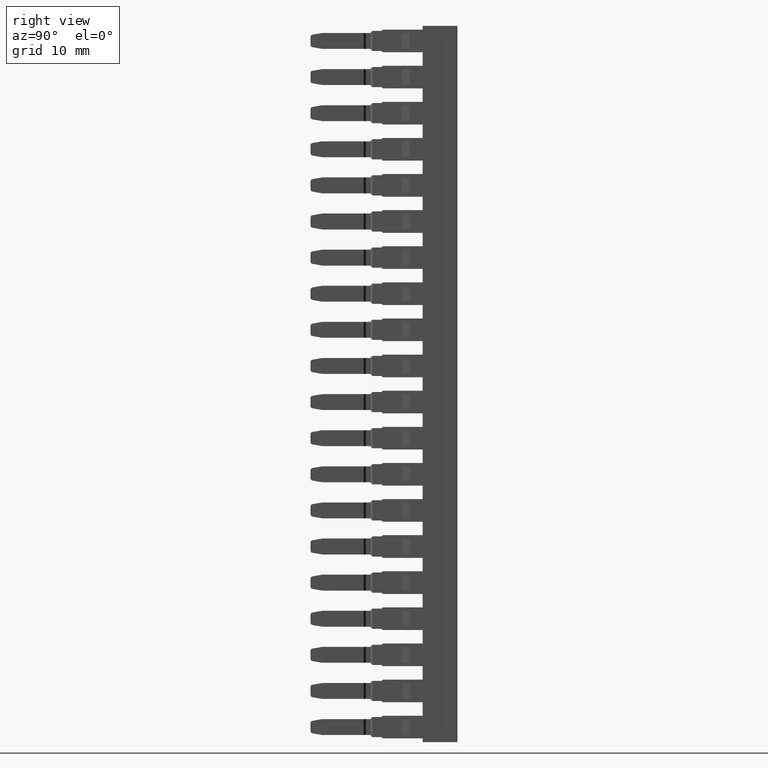
[diagram: clean part render]
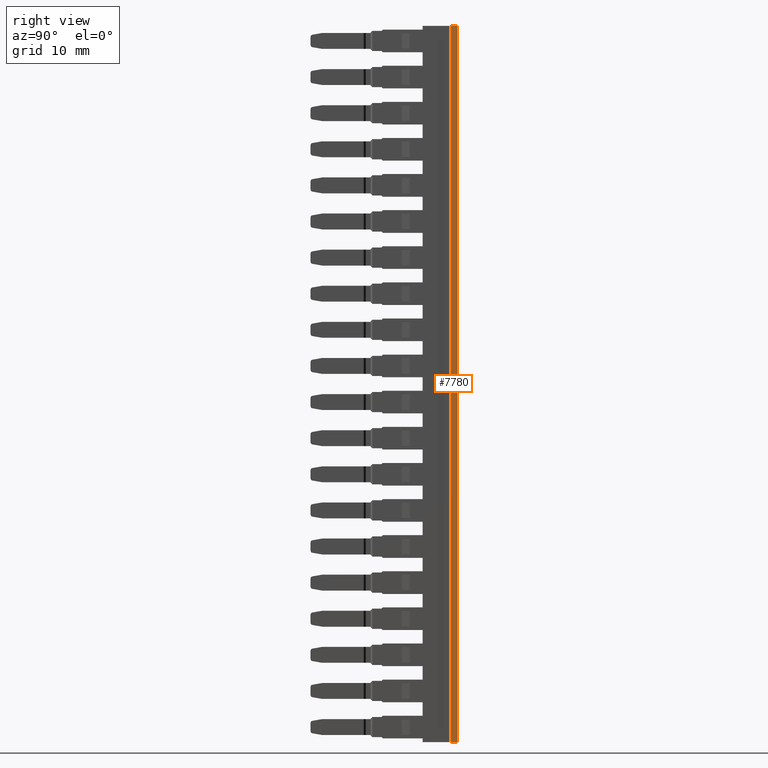
[diagram: same view with one face highlighted and labeled with its STEP entity id]
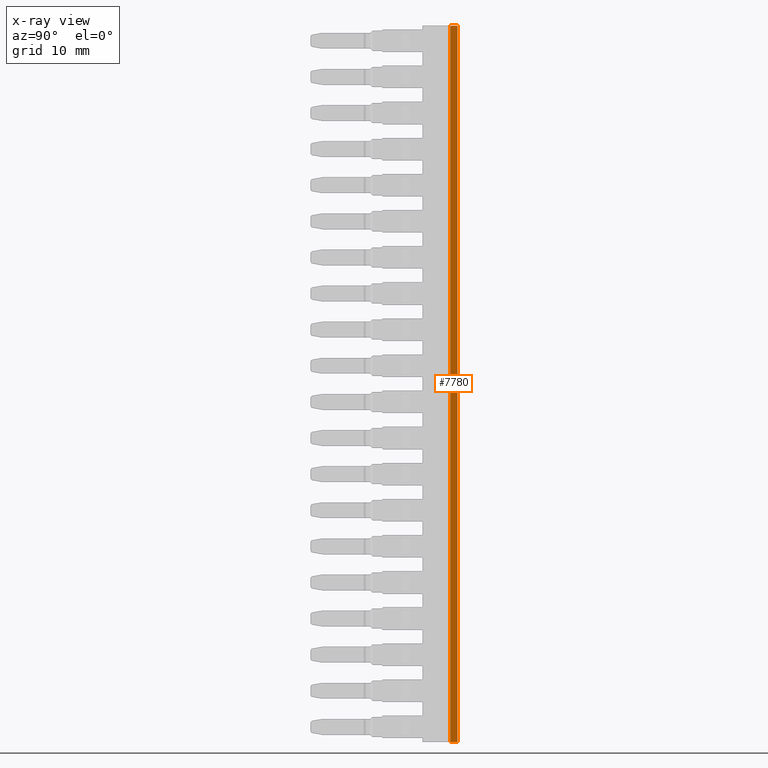
[diagram: x-ray of the same camera — body ghosted, the highlighted face saturated]
A machine part, right view. The second image highlights one B-rep face of the part: STEP entity #7780.
The next image is the same camera in x-ray: the body ghosted, the highlighted face saturated — about 0% of this face is hidden behind the body in this view.
In plain terms, the highlighted planar face has unit normal (1, -0, -0).
Its self-contained STEP definition (entity closure, byte-faithful):
#41 = EDGE_LOOP ( 'NONE', ( #13431, #13385, #13382, #13412 ) ) ;
#453 = VECTOR ( 'NONE', #19107, 1000.000000000000000 ) ;
#476 = VECTOR ( 'NONE', #19093, 1000.000000000000000 ) ;
#515 = VECTOR ( 'NONE', #19185, 1000.000000000000000 ) ;
#535 = VECTOR ( 'NONE', #19232, 1000.000000000000000 ) ;
#4129 = EDGE_CURVE ( 'NONE', #10394, #10383, #19113, .T. ) ;
#4135 = EDGE_CURVE ( 'NONE', #10323, #10394, #19124, .T. ) ;
#4169 = EDGE_CURVE ( 'NONE', #10323, #10427, #19182, .T. ) ;
#4172 = EDGE_CURVE ( 'NONE', #10427, #10383, #19210, .T. ) ;
#7780 = ADVANCED_FACE ( 'NONE', ( #9482 ), #9520, .T. ) ;
#9482 = FACE_OUTER_BOUND ( 'NONE', #41, .T. ) ;
#9497 = DIRECTION ( 'NONE',  ( 6.401193638283110000E-015, 1.000000000000000000, 0.0000000000000000000 ) ) ;
#9510 = DIRECTION ( 'NONE',  ( 1.000000000000000000, -6.401193638283110000E-015, -1.715124499442926100E-015 ) ) ;
#9520 = PLANE ( 'NONE',  #25600 ) ;
#9526 = CARTESIAN_POINT ( 'NONE',  ( 1459.968071211366100, 1009.692679537520100, -112.3308473691034000 ) ) ;
#10323 = VERTEX_POINT ( 'NONE', #26043 ) ;
#10383 = VERTEX_POINT ( 'NONE', #26080 ) ;
#10394 = VERTEX_POINT ( 'NONE', #26070 ) ;
#10427 = VERTEX_POINT ( 'NONE', #26128 ) ;
#13382 = ORIENTED_EDGE ( 'NONE', *, *, #4129, .F. ) ;
#13385 = ORIENTED_EDGE ( 'NONE', *, *, #4172, .T. ) ;
#13412 = ORIENTED_EDGE ( 'NONE', *, *, #4135, .F. ) ;
#13431 = ORIENTED_EDGE ( 'NONE', *, *, #4169, .T. ) ;
#19093 = DIRECTION ( 'NONE',  ( -0.0000000000000000000, 1.000000000000000000, 9.317217804676702700E-014 ) ) ;
#19106 = CARTESIAN_POINT ( 'NONE',  ( 1459.968071211366100, 1009.692679537520100, -112.3308473691034000 ) ) ;
#19107 = DIRECTION ( 'NONE',  ( -1.734374079839205100E-028, 6.606529101504750500E-015, -1.000000000000000000 ) ) ;
#19113 = LINE ( 'NONE', #19106, #453 ) ;
#19118 = CARTESIAN_POINT ( 'NONE',  ( 1459.968071211366100, 1004.894679537514000, -77.04999999999307600 ) ) ;
#19124 = LINE ( 'NONE', #19118, #476 ) ;
#19182 = LINE ( 'NONE', #19184, #515 ) ;
#19184 = CARTESIAN_POINT ( 'NONE',  ( 1459.968071211366100, 1008.542679537518100, -100.1158559843420100 ) ) ;
#19185 = DIRECTION ( 'NONE',  ( -6.693669382370647900E-057, -5.228454067018329500E-043, -1.000000000000000000 ) ) ;
#19210 = LINE ( 'NONE', #19248, #535 ) ;
#19232 = DIRECTION ( 'NONE',  ( 6.401193638283110000E-015, 1.000000000000000000, 0.0000000000000000000 ) ) ;
#19248 = CARTESIAN_POINT ( 'NONE',  ( 1459.968071211366100, 1009.692679537394800, -194.0499999999873600 ) ) ;
#25600 = AXIS2_PLACEMENT_3D ( 'NONE', #9526, #9510, #9497 ) ;
#26043 = CARTESIAN_POINT ( 'NONE',  ( 1459.968071211366100, 1008.542679537514300, -77.04999999999270700 ) ) ;
#26070 = CARTESIAN_POINT ( 'NONE',  ( 1459.968071211366100, 1009.692679537514100, -77.04999999999265000 ) ) ;
#26080 = CARTESIAN_POINT ( 'NONE',  ( 1459.968071211366100, 1009.692679537388800, -194.0499999999874200 ) ) ;
#26128 = CARTESIAN_POINT ( 'NONE',  ( 1459.968071211366100, 1008.542679537388400, -194.0499999999873600 ) ) ;